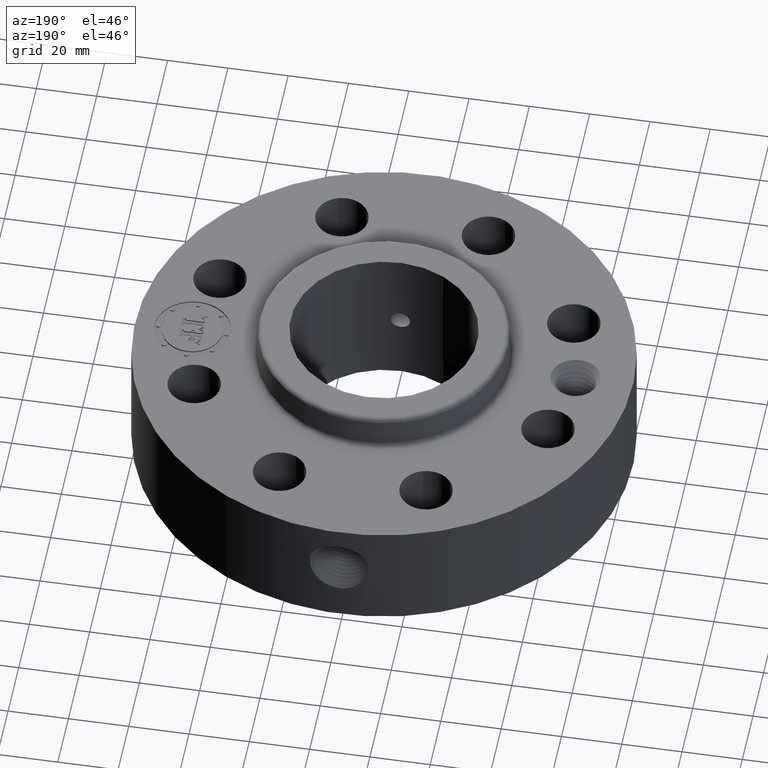
[diagram: clean part render]
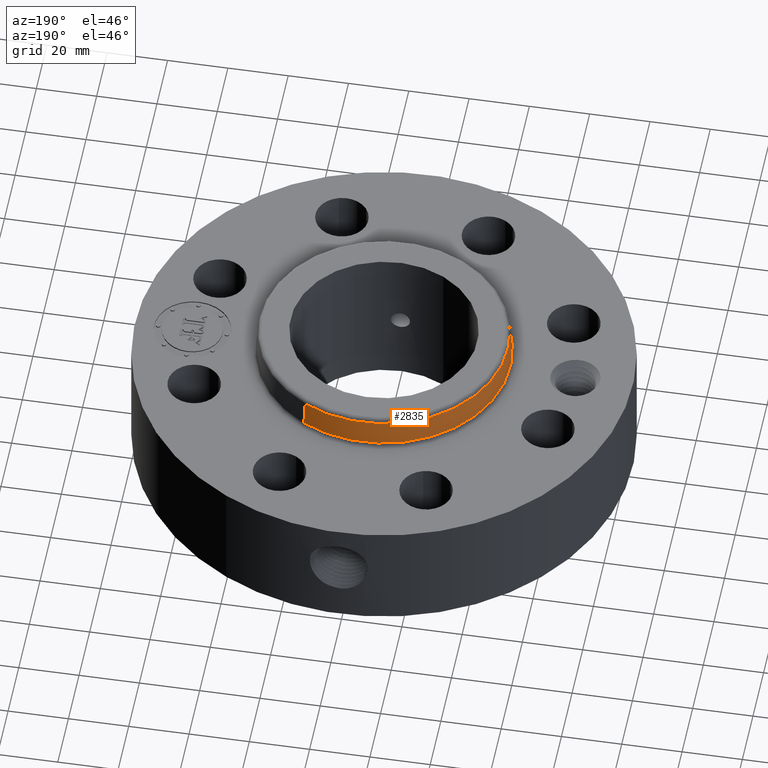
[diagram: same view with one face highlighted and labeled with its STEP entity id]
A machine part, auxiliary view. The second image highlights one B-rep face of the part: STEP entity #2835.
In plain terms, the highlighted conical surface has half-angle 5 deg.
Its self-contained STEP definition (entity closure, byte-faithful):
#2192=AXIS2_PLACEMENT_3D('Circle Axis2P3D',#2190,#2191,$) ;
#2796=AXIS2_PLACEMENT_3D('Cone Axis2P3D',#2793,#2794,#2795) ;
#2826=AXIS2_PLACEMENT_3D('Circle Axis2P3D',#2824,#2825,$) ;
#2168=CARTESIAN_POINT('Vertex',(0.79115194961,1.44819392977,1.61477065544)) ;
#2175=CARTESIAN_POINT('Vertex',(-0.79115194961,-1.44819392977,1.61477065544)) ;
#2190=CARTESIAN_POINT('Axis2P3D Location',(0.,0.,1.61477065544)) ;
#2793=CARTESIAN_POINT('Axis2P3D Location',(0.,0.,1.94522934457)) ;
#2798=CARTESIAN_POINT('Line Origine',(0.784221520474,1.43550786433,1.78000000001)) ;
#2802=CARTESIAN_POINT('Vertex',(0.777291091337,1.42282179889,1.94522934457)) ;
#2809=CARTESIAN_POINT('Vertex',(-0.777291091337,-1.42282179889,1.94522934457)) ;
#2812=CARTESIAN_POINT('Line Origine',(-0.784221520474,-1.43550786433,1.78000000001)) ;
#2824=CARTESIAN_POINT('Axis2P3D Location',(0.,0.,1.94522934457)) ;
#2191=DIRECTION('Axis2P3D Direction',(0.,0.,-0.0393700787402)) ;
#2794=DIRECTION('Axis2P3D Direction',(0.,0.,-0.0393700787402)) ;
#2795=DIRECTION('Axis2P3D XDirection',(-0.0188750212049,-0.0345504945626,0.)) ;
#2799=DIRECTION('Vector Direction',(0.00164506649249,0.0030112740159,-0.0392202637044)) ;
#2813=DIRECTION('Vector Direction',(-0.00164506649249,-0.0030112740159,-0.0392202637044)) ;
#2825=DIRECTION('Axis2P3D Direction',(0.,0.,-0.0393700787402)) ;
#2800=VECTOR('Line Direction',#2799,0.0393700787402) ;
#2814=VECTOR('Line Direction',#2813,0.0393700787402) ;
#2830=ORIENTED_EDGE('',*,*,#2194,.F.) ;
#2831=ORIENTED_EDGE('',*,*,#2816,.T.) ;
#2832=ORIENTED_EDGE('',*,*,#2828,.T.) ;
#2833=ORIENTED_EDGE('',*,*,#2804,.F.) ;
#2835=ADVANCED_FACE('PartBody',(#2834),#2797,.T.) ;
#2193=CIRCLE('generated circle',#2192,1.65020818856) ;
#2827=CIRCLE('generated circle',#2826,1.6212967995) ;
#2797=CONICAL_SURFACE('Cone',#2796,1.6212967995,0.0872664625997) ;
#2194=EDGE_CURVE('',#2176,#2169,#2193,.T.) ;
#2804=EDGE_CURVE('',#2169,#2803,#2801,.F.) ;
#2816=EDGE_CURVE('',#2176,#2810,#2815,.F.) ;
#2828=EDGE_CURVE('',#2810,#2803,#2827,.T.) ;
#2829=EDGE_LOOP('',(#2830,#2831,#2832,#2833)) ;
#2834=FACE_OUTER_BOUND('',#2829,.T.) ;
#2801=LINE('Line',#2798,#2800) ;
#2815=LINE('Line',#2812,#2814) ;
#2169=VERTEX_POINT('',#2168) ;
#2176=VERTEX_POINT('',#2175) ;
#2803=VERTEX_POINT('',#2802) ;
#2810=VERTEX_POINT('',#2809) ;